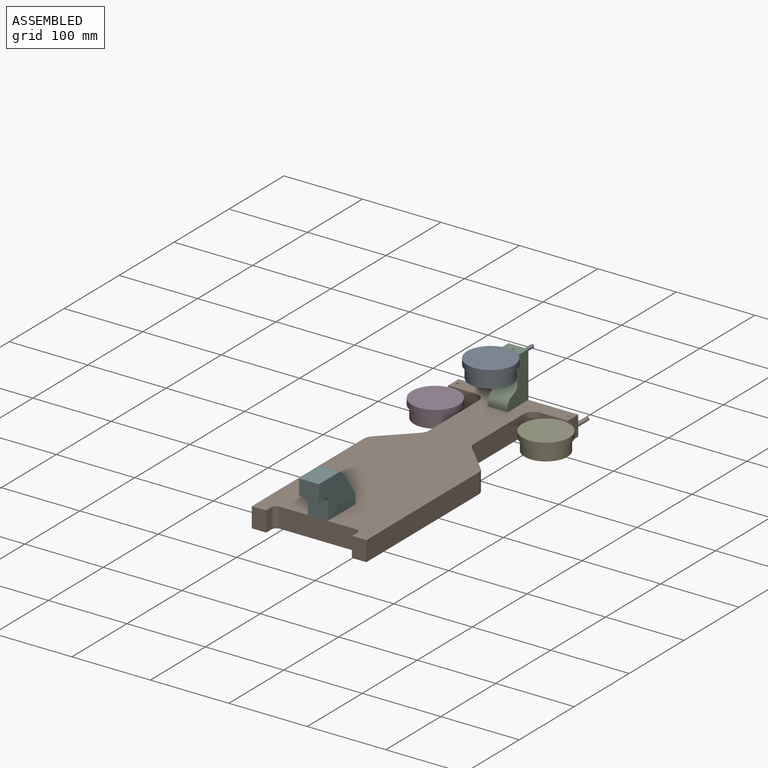
[diagram: assembled view]
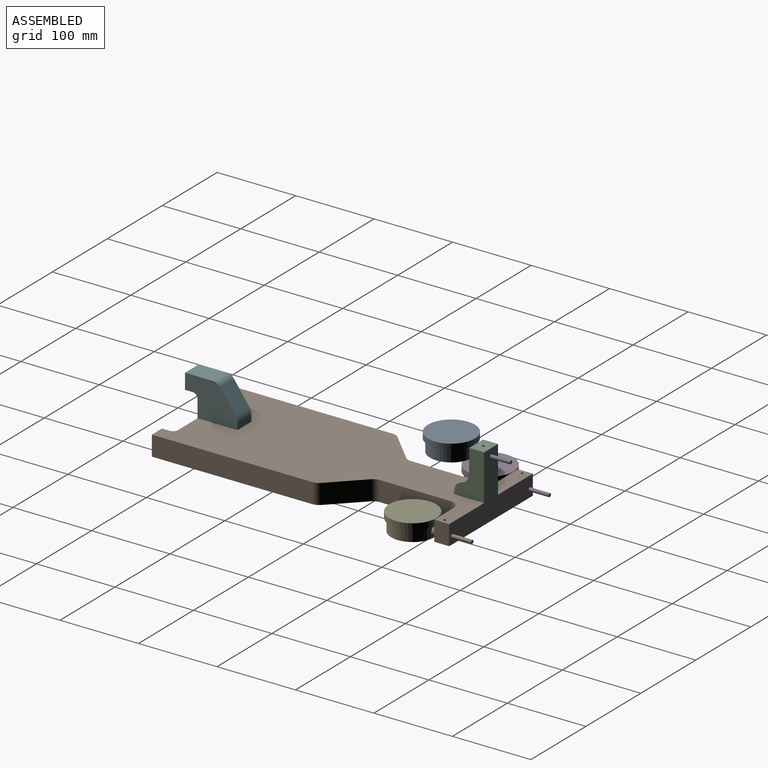
[diagram: assembled view, second angle]
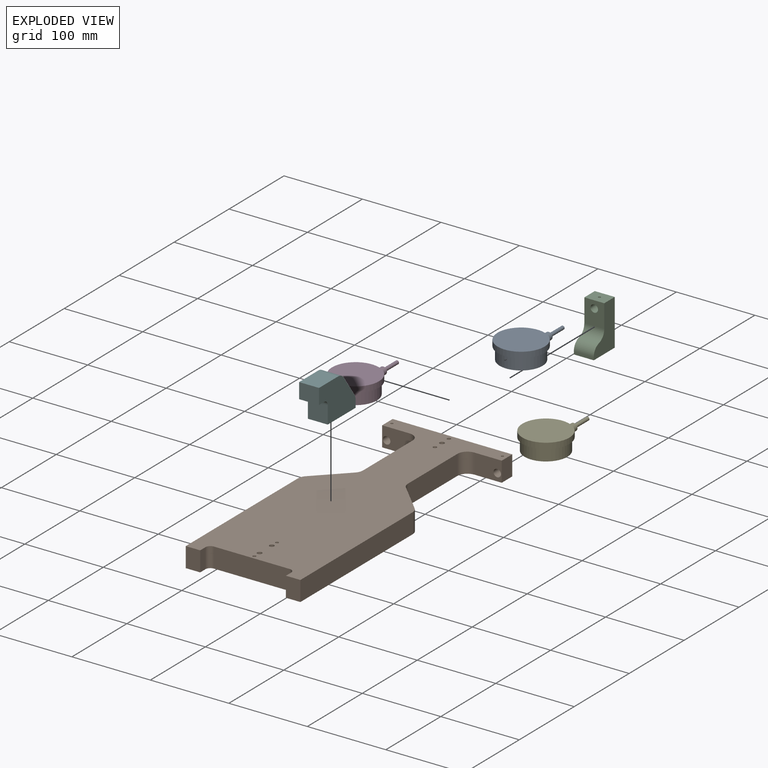
[diagram: exploded view]
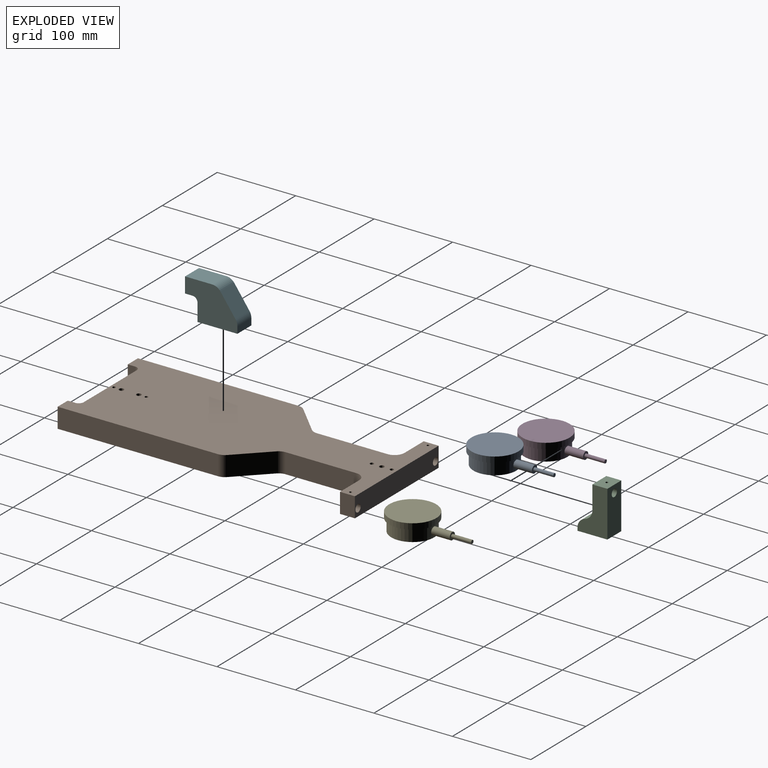
[diagram: exploded view, second angle]
ASSEMBLY  parts=6 mates=5
PART A: 9 faces, bbox 59.9x105.9x22.9 mm
  f0: cylinder r=4.75mm len=23.62mm, axis (0,1,0), area 698.7mm2, adj f1,f4
  f1: plane 9.5x9.5mm, normal (0,1,0), area 55mm2, adj f0,f2
  f2: cylinder r=2.25mm len=25.4mm, axis (0,-1,0), area 358.7mm2, adj f1,f3
  f3: plane 4.5x4.5mm, normal (0,1,0), area 15.9mm2, adj f2
  f4: cylinder r=27.3mm len=54.61mm, axis (0,0,-1), area 2586.9mm2, adj f0,f5,f8
  f5: plane 54.61x54.61mm, normal (0,0,-1), area 2342.3mm2, adj f4
  f6: cylinder r=29.97mm len=59.94mm, axis (0,0,-1), area 1387.2mm2, adj f7,f8
  f7: plane 59.94x59.94mm, normal (0,0,1), area 2822.2mm2, adj f6
  f8: plane 59.94x59.94mm, normal (0,0,-1), area 479.9mm2, adj f4,f6
PART B: 37 faces, bbox 152.4x381x25.4 mm
  f0: plane 381x152.4mm, normal (0,0,1), area 42384.9mm2, adj f2,f3,f4,f5,f6,f7,f8,f9
  f1: plane 381x152.4mm, normal (0,0,-1), area 42400.7mm2, adj f2,f3,f4,f5,f6,f7,f8,f9
  f2: plane 204.29x25.4mm, normal (-1,0,0), area 5189mm2, adj f0,f1,f3,f31
  f3: plane 25.4x18.42mm, normal (0,-1,0), area 467.7mm2, adj f0,f1,f2,f4
  f4: plane 25.4x9.53mm, normal (1,0,0), area 241.9mm2, adj f0,f1,f3,f10
  f5: plane 96.52x25.4mm, normal (0,-1,0), area 2451.6mm2, adj f0,f1,f10,f11
  f6: plane 25.4x9.53mm, normal (-1,0,0), area 241.9mm2, adj f0,f1,f7,f11
  f7: plane 25.4x18.42mm, normal (0,-1,0), area 467.7mm2, adj f0,f1,f6,f8
  f8: plane 204.29x25.4mm, normal (1,0,0), area 5189mm2, adj f0,f1,f7,f28
  f9: plane 152.4x25.4mm, normal (0,1,0), area 3728.4mm2, adj f0,f1,f22,f23,f24,f25
  f10: cylinder r=6.35mm len=25.4mm, axis (0,0,1), area 253.4mm2, adj f0,f1,f4,f5
  f11: cylinder r=6.35mm len=25.4mm, axis (0,0,-1), area 253.4mm2, adj f0,f1,f5,f6
  f12: cylinder r=1.99mm len=25.4mm, axis (0,0,-1), area 318.2mm2, adj f0,f1
  f13: cylinder r=3mm len=25.4mm, axis (0,0,-1), area 478.8mm2, adj f0,f1
  f14: cylinder r=3mm len=25.4mm, axis (0,0,-1), area 478.8mm2, adj f0,f1
  f15: cylinder r=1.99mm len=25.4mm, axis (0,0,-1), area 318.2mm2, adj f0,f1
  f16: plane 34.93x25.4mm, normal (0,-1,0), area 815.8mm2, adj f0,f1,f23,f25,f26
  f17: plane 89.99x25.4mm, normal (1,0,0), area 2285.7mm2, adj f0,f1,f26,f27
  f18: plane 37.01x37.01mm, normal (0.71,0.71,0), area 1329.5mm2, adj f0,f1,f27,f28
  f19: plane 34.93x25.4mm, normal (0,-1,0), area 815.8mm2, adj f0,f1,f22,f24,f29
  f20: plane 37.01x37.01mm, normal (-0.71,0.71,0), area 1329.5mm2, adj f0,f1,f30,f31
  f21: plane 89.99x25.4mm, normal (-1,0,0), area 2285.7mm2, adj f0,f1,f29,f30
  f22: plane 25.4x19.05mm, normal (-1,0,0), area 483.9mm2, adj f0,f1,f9,f19
  f23: plane 25.4x19.05mm, normal (1,0,0), area 483.9mm2, adj f0,f1,f9,f16
  f24: cylinder r=4.76mm len=19.05mm, axis (0,1,0), area 562mm2, adj f9,f19,f33
  f25: cylinder r=4.76mm len=19.05mm, axis (0,1,0), area 562mm2, adj f9,f16,f32
  f26: cylinder r=12.7mm len=25.4mm, axis (0,0,-1), area 506.7mm2, adj f0,f1,f16,f17
  f27: cylinder r=12.7mm len=25.4mm, axis (0,0,-1), area 253.4mm2, adj f0,f1,f17,f18
  f28: cylinder r=12.7mm len=25.4mm, axis (0,0,1), area 253.4mm2, adj f0,f1,f8,f18
  f29: cylinder r=12.7mm len=25.4mm, axis (0,0,-1), area 506.7mm2, adj f0,f1,f19,f21
  f30: cylinder r=12.7mm len=25.4mm, axis (0,0,1), area 253.4mm2, adj f0,f1,f20,f21
  f31: cylinder r=12.7mm len=25.4mm, axis (0,0,-1), area 253.4mm2, adj f0,f1,f2,f20
  f32: cylinder r=1.59mm len=11.39mm, axis (0,0,1), area 112.2mm2, adj f0,f25
  f33: cylinder r=1.59mm len=11.39mm, axis (0,0,1), area 112.2mm2, adj f0,f24
  f34: cylinder r=2.38mm len=25.4mm, axis (0,0,-1), area 380mm2, adj f0,f1
  f35: cylinder r=3mm len=25.4mm, axis (0,0,-1), area 478.8mm2, adj f0,f1
  f36: cylinder r=2.38mm len=25.4mm, axis (0,0,-1), area 380mm2, adj f0,f1
PART C: 20 faces, bbox 25.4x38.1x58.4 mm
  f0: plane 25.4x19.05mm, normal (0,0,1), area 476mm2, adj f1,f4,f5,f6,f13
  f1: plane 58.42x38.1mm, normal (1,0,0), area 1420.9mm2, adj f0,f2,f5,f6,f7,f8,f9,f10
  f2: plane 38.1x25.4mm, normal (0,0,-1), area 903.8mm2, adj f1,f4,f6,f8,f14,f16,f18
  f3: cylinder r=4.76mm len=19.05mm, axis (0,1,0), area 554mm2, adj f5,f6,f12,f13
  f4: plane 58.42x38.1mm, normal (-1,0,0), area 1420.9mm2, adj f0,f2,f5,f6,f7,f8,f9,f10
  f5: plane 29.89x25.4mm, normal (0,-1,0), area 688mm2, adj f0,f1,f3,f4,f9
  f6: plane 58.42x25.4mm, normal (0,1,0), area 1412.6mm2, adj f0,f1,f2,f3,f4
  f7: plane 25.4x2.34mm, normal (0,-0.34,0.94), area 63.2mm2, adj f1,f4,f9,f10
  f8: plane 25.4x3.81mm, normal (0,-1,0), area 96.7mm2, adj f1,f2,f4,f10
  f9: cylinder r=12.7mm len=25.4mm, axis (-1,0,0), area 394.1mm2, adj f1,f4,f5,f7
  f10: cylinder r=12.7mm len=25.4mm, axis (1,0,0), area 394.1mm2, adj f1,f4,f7,f8
  f11: plane 3.18x3.18mm, normal (0,0,1), area 7.9mm2, adj f12
  f12: cylinder r=1.59mm len=3.18mm, axis (0,0,1), area 10.8mm2, adj f3,f11
  f13: cylinder r=1.59mm len=5.04mm, axis (0,0,1), area 48.9mm2, adj f0,f3
  f14: cylinder r=2.38mm len=12.7mm, axis (0,0,-1), area 190mm2, adj f2,f15
  f15: plane 4.76x4.76mm, normal (0,0,-1), area 17.8mm2, adj f14
  f16: cylinder r=3mm len=12.7mm, axis (0,0,-1), area 239.4mm2, adj f2,f17
  f17: plane 6x6mm, normal (0,0,-1), area 28.3mm2, adj f16
  f18: cylinder r=2.38mm len=12.7mm, axis (0,0,-1), area 190mm2, adj f2,f19
  f19: plane 4.76x4.76mm, normal (0,0,-1), area 17.8mm2, adj f18
PART D: 9 faces, bbox 59.9x105.9x22.9 mm
  f0: cylinder r=4.75mm len=23.62mm, axis (0,1,0), area 698.7mm2, adj f1,f4
  f1: plane 9.5x9.5mm, normal (0,1,0), area 55mm2, adj f0,f2
  f2: cylinder r=2.25mm len=25.4mm, axis (0,-1,0), area 358.7mm2, adj f1,f3
  f3: plane 4.5x4.5mm, normal (0,1,0), area 15.9mm2, adj f2
  f4: cylinder r=27.3mm len=54.61mm, axis (0,0,-1), area 2587.1mm2, adj f0,f5,f8
  f5: plane 54.61x54.61mm, normal (0,0,-1), area 2342.3mm2, adj f4
  f6: cylinder r=29.97mm len=59.94mm, axis (0,0,-1), area 1387.2mm2, adj f7,f8
  f7: plane 59.94x59.94mm, normal (0,0,1), area 2822.2mm2, adj f6
  f8: plane 59.94x59.94mm, normal (0,0,-1), area 479.9mm2, adj f4,f6
PART E: same geometry as A
PART F: 20 faces, bbox 25.4x66.7x48.3 mm
  f0: plane 25.4x9.53mm, normal (0,0,-1), area 241.9mm2, adj f6,f7,f8,f11
  f1: plane 25.4x22.23mm, normal (0,-1,0), area 564.5mm2, adj f2,f7,f8,f11
  f2: plane 50.8x25.4mm, normal (0,0,-1), area 1226.1mm2, adj f1,f3,f7,f8,f12,f14,f16,f18
  f3: plane 25.4x8.63mm, normal (0,1,0), area 219.2mm2, adj f2,f7,f8,f9
  f4: plane 26.93x25.4mm, normal (0,0.81,0.58), area 840.6mm2, adj f7,f8,f9,f10
  f5: plane 34.74x25.4mm, normal (0,0,1), area 882.4mm2, adj f6,f7,f8,f10
  f6: plane 25.4x19.69mm, normal (0,-1,0), area 500mm2, adj f0,f5,f7,f8
  f7: plane 66.68x48.26mm, normal (1,0,0), area 2313.1mm2, adj f0,f1,f2,f3,f4,f5,f6,f9
  f8: plane 66.68x48.26mm, normal (-1,0,0), area 2313.1mm2, adj f0,f1,f2,f3,f4,f5,f6,f9
  f9: cylinder r=12.7mm len=25.4mm, axis (-1,0,0), area 200.1mm2, adj f3,f4,f7,f8
  f10: cylinder r=12.7mm len=25.4mm, axis (-1,0,0), area 306.6mm2, adj f4,f5,f7,f8
  f11: cylinder r=6.35mm len=25.4mm, axis (1,0,0), area 253.4mm2, adj f0,f1,f7,f8
  f12: cylinder r=2.5mm len=12.7mm, axis (0,0,-1), area 199.5mm2, adj f2,f13
  f13: cone r=0mm half-angle=59deg, axis (0,0,-1), area 22.9mm2, adj f12
  f14: cylinder r=2.5mm len=12.7mm, axis (0,0,-1), area 199.5mm2, adj f2,f15
  f15: cone r=0mm half-angle=59deg, axis (0,0,-1), area 22.9mm2, adj f14
  f16: cylinder r=1.99mm len=12.7mm, axis (0,0,-1), area 159.1mm2, adj f2,f17
  f17: plane 3.99x3.99mm, normal (0,0,-1), area 12.5mm2, adj f16
  f18: cylinder r=1.99mm len=12.7mm, axis (0,0,-1), area 159.1mm2, adj f2,f19
  f19: plane 3.99x3.99mm, normal (0,0,-1), area 12.5mm2, adj f18
PLACE A t=(-217.17,-144.52,166.16)mm
PLACE B t=(-146.69,-144.52,101.39)mm
PLACE C t=(-146.69,-144.52,101.39)mm
PLACE D t=(-146.69,-144.52,101.39)mm
PLACE E t=(-146.69,-144.52,101.39)mm
PLACE F t=(-146.69,-144.52,101.39)mm
MATE fastened C.f16 <-> B.f35  axis (0,0,-1) through (-146.69,217.43,126.79)mm
MATE fastened D.f0 <-> B.f24  axis (0,1,0) through (-217.17,236.48,110.92)mm
MATE fastened F.f18 <-> B.f15  axis (0,0,-1) through (-146.69,-123.88,126.79)mm
MATE fastened E.f0 <-> B.f25  axis (0,1,0) through (-76.21,236.48,110.92)mm
MATE fastened A.f0 <-> C.f3  axis (0,1,0) through (-146.69,236.48,175.69)mm
